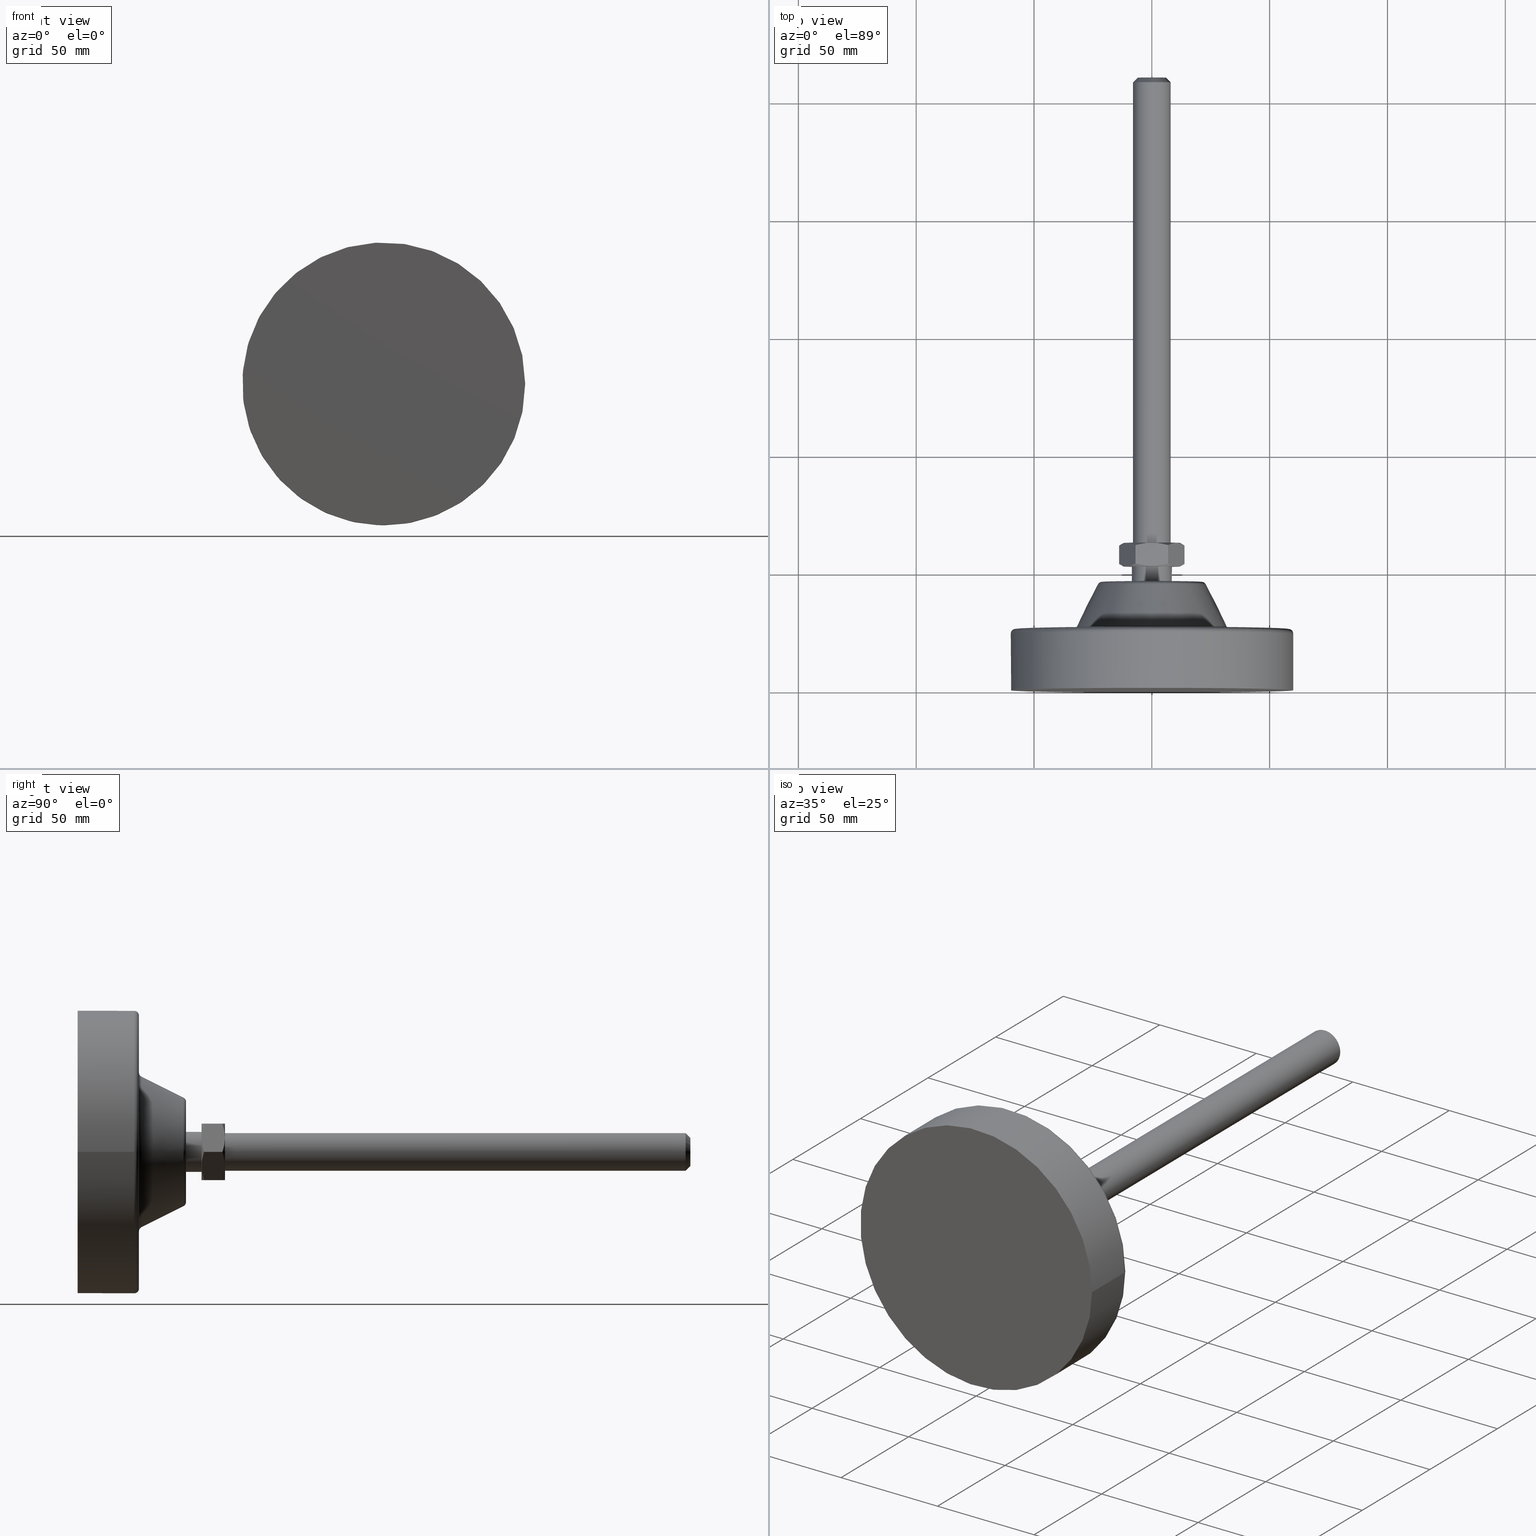
[diagram: canonical four-view strip — front | top / right | iso, engineering-drawing reading convention]
A machine part, canonical four-view strip (front | top / right | iso — engineering-drawing reading convention). The complete STEP part file that produces these views, byte-faithful:
ISO-10303-21;
HEADER;
/* Generated by software containing ST-Developer
 * from STEP Tools, Inc. (www.steptools.com) 
 */

FILE_DESCRIPTION(
/* description */ ('PIEDE SNODATO ANTIV. D=120 H=260 M16'),
/* implementation_level */ '2;1');

FILE_NAME(
/* name */ 
'Q:\\Catalogo\\2_Accessori Dierre\\Per Download Web e catalogo cartace
o\\CATALOGO PIEDI E SOSTEGNI\\PAGINA 50\\CPDSN0000017.stp',
/* time_stamp */ '2019-06-19T11:13:55+02:00',
/* author */ ('fzagni'),
/* organization */ (''),
/* preprocessor_version */ 'ST-DEVELOPER v17.2',
/* originating_system */ 'Autodesk Inventor 2019',
/* authorisation */ '');

FILE_SCHEMA (('AUTOMOTIVE_DESIGN { 1 0 10303 214 3 1 1 }'));
ENDSEC;

DATA;
#10=MECHANICAL_DESIGN_GEOMETRIC_PRESENTATION_REPRESENTATION('',(#40,#41),
#855);
#11=ITEM_DEFINED_TRANSFORMATION($,$,#470,#522);
#12=ITEM_DEFINED_TRANSFORMATION($,$,#496,#523);
#13=(
REPRESENTATION_RELATIONSHIP($,$,#869,#868)
REPRESENTATION_RELATIONSHIP_WITH_TRANSFORMATION(#11)
SHAPE_REPRESENTATION_RELATIONSHIP()
);
#14=(
REPRESENTATION_RELATIONSHIP($,$,#870,#868)
REPRESENTATION_RELATIONSHIP_WITH_TRANSFORMATION(#12)
SHAPE_REPRESENTATION_RELATIONSHIP()
);
#15=CONTEXT_DEPENDENT_SHAPE_REPRESENTATION(#13,#866);
#16=CONTEXT_DEPENDENT_SHAPE_REPRESENTATION(#14,#867);
#17=NEXT_ASSEMBLY_USAGE_OCCURRENCE('440000013166.ipt:1',
'440000013166.ipt:1','440000013166.ipt:1',#872,#873,
'440000013166.ipt:1');
#18=NEXT_ASSEMBLY_USAGE_OCCURRENCE('440000013167.ipt:2',
'440000013167.ipt:2','440000013167.ipt:2',#872,#874,
'440000013167.ipt:2');
#19=SPHERICAL_SURFACE('',#512,12.);
#20=(
BOUNDED_CURVE()
B_SPLINE_CURVE(2,(#752,#753,#754),.UNSPECIFIED.,.F.,.F.)
B_SPLINE_CURVE_WITH_KNOTS((3,3),(17.5321216666416,26.6588637905805),
 .UNSPECIFIED.)
CURVE()
GEOMETRIC_REPRESENTATION_ITEM()
RATIONAL_B_SPLINE_CURVE((1.36042725157686,1.36042725157686,1.26275296946847))
REPRESENTATION_ITEM('')
);
#21=(
BOUNDED_CURVE()
B_SPLINE_CURVE(2,(#756,#757,#758),.UNSPECIFIED.,.F.,.F.)
B_SPLINE_CURVE_WITH_KNOTS((3,3),(8.40537954270263,26.6588637905805),
 .UNSPECIFIED.)
CURVE()
GEOMETRIC_REPRESENTATION_ITEM()
RATIONAL_B_SPLINE_CURVE((1.26275296946847,1.45810153368524,1.26275296946847))
REPRESENTATION_ITEM('')
);
#22=(
BOUNDED_CURVE()
B_SPLINE_CURVE(2,(#760,#761,#762),.UNSPECIFIED.,.F.,.F.)
B_SPLINE_CURVE_WITH_KNOTS((3,3),(8.40537954270264,26.6588637905805),
 .UNSPECIFIED.)
CURVE()
GEOMETRIC_REPRESENTATION_ITEM()
RATIONAL_B_SPLINE_CURVE((1.26275296946847,1.45810153368524,1.26275296946847))
REPRESENTATION_ITEM('')
);
#23=(
BOUNDED_CURVE()
B_SPLINE_CURVE(2,(#764,#765,#766),.UNSPECIFIED.,.F.,.F.)
B_SPLINE_CURVE_WITH_KNOTS((3,3),(8.40537954270263,17.5321216666416),
 .UNSPECIFIED.)
CURVE()
GEOMETRIC_REPRESENTATION_ITEM()
RATIONAL_B_SPLINE_CURVE((1.26275296946847,1.36042725157686,1.36042725157686))
REPRESENTATION_ITEM('')
);
#24=(
BOUNDED_CURVE()
B_SPLINE_CURVE(2,(#768,#769,#770),.UNSPECIFIED.,.F.,.F.)
B_SPLINE_CURVE_WITH_KNOTS((3,3),(17.5321216666416,26.6588637905805),
 .UNSPECIFIED.)
CURVE()
GEOMETRIC_REPRESENTATION_ITEM()
RATIONAL_B_SPLINE_CURVE((1.36042725157686,1.36042725157686,1.26275296946847))
REPRESENTATION_ITEM('')
);
#25=(
BOUNDED_CURVE()
B_SPLINE_CURVE(2,(#772,#773,#774),.UNSPECIFIED.,.F.,.F.)
B_SPLINE_CURVE_WITH_KNOTS((3,3),(8.40537954270263,26.6588637905805),
 .UNSPECIFIED.)
CURVE()
GEOMETRIC_REPRESENTATION_ITEM()
RATIONAL_B_SPLINE_CURVE((1.26275296946847,1.45810153368524,1.26275296946847))
REPRESENTATION_ITEM('')
);
#26=(
BOUNDED_CURVE()
B_SPLINE_CURVE(2,(#776,#777,#778),.UNSPECIFIED.,.F.,.F.)
B_SPLINE_CURVE_WITH_KNOTS((3,3),(8.40537954270264,26.6588637905805),
 .UNSPECIFIED.)
CURVE()
GEOMETRIC_REPRESENTATION_ITEM()
RATIONAL_B_SPLINE_CURVE((1.26275296946847,1.45810153368524,1.26275296946847))
REPRESENTATION_ITEM('')
);
#27=(
BOUNDED_CURVE()
B_SPLINE_CURVE(2,(#779,#780,#781),.UNSPECIFIED.,.F.,.F.)
B_SPLINE_CURVE_WITH_KNOTS((3,3),(8.40537954270263,17.5321216666416),
 .UNSPECIFIED.)
CURVE()
GEOMETRIC_REPRESENTATION_ITEM()
RATIONAL_B_SPLINE_CURVE((1.26275296946847,1.36042725157686,1.36042725157686))
REPRESENTATION_ITEM('')
);
#28=(
BOUNDED_CURVE()
B_SPLINE_CURVE(2,(#788,#789,#790),.UNSPECIFIED.,.F.,.F.)
B_SPLINE_CURVE_WITH_KNOTS((3,3),(17.5321216666416,26.6588637905805),
 .UNSPECIFIED.)
CURVE()
GEOMETRIC_REPRESENTATION_ITEM()
RATIONAL_B_SPLINE_CURVE((1.36042725157685,1.36042725157685,1.26275296946846))
REPRESENTATION_ITEM('')
);
#29=(
BOUNDED_CURVE()
B_SPLINE_CURVE(2,(#792,#793,#794),.UNSPECIFIED.,.F.,.F.)
B_SPLINE_CURVE_WITH_KNOTS((3,3),(8.40537954270263,26.6588637905805),
 .UNSPECIFIED.)
CURVE()
GEOMETRIC_REPRESENTATION_ITEM()
RATIONAL_B_SPLINE_CURVE((1.26275296946847,1.45810153368524,1.26275296946847))
REPRESENTATION_ITEM('')
);
#30=(
BOUNDED_CURVE()
B_SPLINE_CURVE(2,(#796,#797,#798),.UNSPECIFIED.,.F.,.F.)
B_SPLINE_CURVE_WITH_KNOTS((3,3),(8.40537954270263,26.6588637905805),
 .UNSPECIFIED.)
CURVE()
GEOMETRIC_REPRESENTATION_ITEM()
RATIONAL_B_SPLINE_CURVE((1.26275296946847,1.45810153368524,1.26275296946846))
REPRESENTATION_ITEM('')
);
#31=(
BOUNDED_CURVE()
B_SPLINE_CURVE(2,(#800,#801,#802),.UNSPECIFIED.,.F.,.F.)
B_SPLINE_CURVE_WITH_KNOTS((3,3),(8.40537954270264,17.5321216666416),
 .UNSPECIFIED.)
CURVE()
GEOMETRIC_REPRESENTATION_ITEM()
RATIONAL_B_SPLINE_CURVE((1.26275296946846,1.36042725157685,1.36042725157685))
REPRESENTATION_ITEM('')
);
#32=(
BOUNDED_CURVE()
B_SPLINE_CURVE(2,(#804,#805,#806),.UNSPECIFIED.,.F.,.F.)
B_SPLINE_CURVE_WITH_KNOTS((3,3),(17.5321216666416,26.6588637905805),
 .UNSPECIFIED.)
CURVE()
GEOMETRIC_REPRESENTATION_ITEM()
RATIONAL_B_SPLINE_CURVE((1.36042725157685,1.36042725157685,1.26275296946846))
REPRESENTATION_ITEM('')
);
#33=(
BOUNDED_CURVE()
B_SPLINE_CURVE(2,(#808,#809,#810),.UNSPECIFIED.,.F.,.F.)
B_SPLINE_CURVE_WITH_KNOTS((3,3),(8.40537954270263,26.6588637905805),
 .UNSPECIFIED.)
CURVE()
GEOMETRIC_REPRESENTATION_ITEM()
RATIONAL_B_SPLINE_CURVE((1.26275296946847,1.45810153368524,1.26275296946847))
REPRESENTATION_ITEM('')
);
#34=(
BOUNDED_CURVE()
B_SPLINE_CURVE(2,(#812,#813,#814),.UNSPECIFIED.,.F.,.F.)
B_SPLINE_CURVE_WITH_KNOTS((3,3),(8.40537954270263,26.6588637905805),
 .UNSPECIFIED.)
CURVE()
GEOMETRIC_REPRESENTATION_ITEM()
RATIONAL_B_SPLINE_CURVE((1.26275296946847,1.45810153368524,1.26275296946846))
REPRESENTATION_ITEM('')
);
#35=(
BOUNDED_CURVE()
B_SPLINE_CURVE(2,(#815,#816,#817),.UNSPECIFIED.,.F.,.F.)
B_SPLINE_CURVE_WITH_KNOTS((3,3),(8.40537954270264,17.5321216666416),
 .UNSPECIFIED.)
CURVE()
GEOMETRIC_REPRESENTATION_ITEM()
RATIONAL_B_SPLINE_CURVE((1.26275296946846,1.36042725157685,1.36042725157685))
REPRESENTATION_ITEM('')
);
#36=SHAPE_REPRESENTATION_RELATIONSHIP('SRR','None',#869,#38);
#37=SHAPE_REPRESENTATION_RELATIONSHIP('SRR','None',#870,#39);
#38=ADVANCED_BREP_SHAPE_REPRESENTATION('',(#42),#853);
#39=ADVANCED_BREP_SHAPE_REPRESENTATION('',(#43),#854);
#40=STYLED_ITEM('',(#433),#42);
#41=STYLED_ITEM('',(#434),#43);
#42=MANIFOLD_SOLID_BREP('1',#408);
#43=MANIFOLD_SOLID_BREP('2',#409);
#44=(
BOUNDED_SURFACE()
B_SPLINE_SURFACE(2,2,((#687,#688,#689,#690,#691,#692,#693,#694,#695),(#696,
#697,#698,#699,#700,#701,#702,#703,#704),(#705,#706,#707,#708,#709,#710,
#711,#712,#713),(#714,#715,#716,#717,#718,#719,#720,#721,#722),(#723,#724,
#725,#726,#727,#728,#729,#730,#731)),.UNSPECIFIED.,.F.,.T.,.F.)
B_SPLINE_SURFACE_WITH_KNOTS((3,2,3),(3,2,2,2,3),(-0.698393292389818,0.407414147662031,
1.51322158771388),(-3.14159265358979,-1.5707963267949,0.,1.5707963267949,
3.14159265358979),.UNSPECIFIED.)
GEOMETRIC_REPRESENTATION_ITEM()
RATIONAL_B_SPLINE_SURFACE(((1.,0.707106781186548,1.,0.707106781186548,1.,
0.707106781186548,1.,0.707106781186548,1.),(0.8510031927523,0.601750128406554,
0.8510031927523,0.601750128406554,0.8510031927523,0.601750128406554,0.8510031927523,
0.601750128406554,0.8510031927523),(1.,0.707106781186548,1.,0.707106781186548,
1.,0.707106781186548,1.,0.707106781186548,1.),(0.851003192752299,0.601750128406553,
0.851003192752299,0.601750128406553,0.851003192752299,0.601750128406553,
0.851003192752299,0.601750128406553,0.851003192752299),(1.,0.707106781186548,
1.,0.707106781186548,1.,0.707106781186548,1.,0.707106781186548,1.)))
REPRESENTATION_ITEM('')
SURFACE()
);
#45=CYLINDRICAL_SURFACE('',#492,60.);
#46=CYLINDRICAL_SURFACE('',#502,8.);
#47=CYLINDRICAL_SURFACE('',#508,8.5);
#48=FACE_BOUND('',#121,.T.);
#49=FACE_BOUND('',#124,.T.);
#50=FACE_BOUND('',#143,.T.);
#51=FACE_BOUND('',#145,.T.);
#52=PLANE('',#479);
#53=PLANE('',#486);
#54=PLANE('',#495);
#55=PLANE('',#501);
#56=PLANE('',#514);
#57=PLANE('',#515);
#58=PLANE('',#516);
#59=PLANE('',#517);
#60=PLANE('',#518);
#61=PLANE('',#519);
#62=PLANE('',#520);
#63=PLANE('',#521);
#64=LINE('',#662,#77);
#65=LINE('',#685,#78);
#66=LINE('',#742,#79);
#67=LINE('',#748,#80);
#68=LINE('',#783,#81);
#69=LINE('',#819,#82);
#70=LINE('',#827,#83);
#71=LINE('',#833,#84);
#72=LINE('',#834,#85);
#73=LINE('',#836,#86);
#74=LINE('',#838,#87);
#75=LINE('',#840,#88);
#76=LINE('',#842,#89);
#77=VECTOR('',#544,27.5);
#78=VECTOR('',#573,60.);
#79=VECTOR('',#588,7.);
#80=VECTOR('',#597,8.);
#81=VECTOR('',#600,16.3201270189222);
#82=VECTOR('',#605,16.3201270189222);
#83=VECTOR('',#614,8.5);
#84=VECTOR('',#623,7.8448594551672);
#85=VECTOR('',#624,7.8448594551672);
#86=VECTOR('',#627,7.8448594551672);
#87=VECTOR('',#630,7.8448594551672);
#88=VECTOR('',#633,7.8448594551672);
#89=VECTOR('',#636,7.8448594551672);
#90=CONICAL_SURFACE('',#476,27.5,0.463647609000806);
#91=CONICAL_SURFACE('',#497,7.,0.78539816339745);
#92=CONICAL_SURFACE('',#504,16.3201270189222,1.0471975511966);
#93=CONICAL_SURFACE('',#506,16.3201270189222,1.0471975511966);
#94=FACE_OUTER_BOUND('',#118,.T.);
#95=FACE_OUTER_BOUND('',#119,.T.);
#96=FACE_OUTER_BOUND('',#120,.T.);
#97=FACE_OUTER_BOUND('',#122,.T.);
#98=FACE_OUTER_BOUND('',#123,.T.);
#99=FACE_OUTER_BOUND('',#125,.T.);
#100=FACE_OUTER_BOUND('',#126,.T.);
#101=FACE_OUTER_BOUND('',#127,.T.);
#102=FACE_OUTER_BOUND('',#128,.T.);
#103=FACE_OUTER_BOUND('',#129,.T.);
#104=FACE_OUTER_BOUND('',#130,.T.);
#105=FACE_OUTER_BOUND('',#131,.T.);
#106=FACE_OUTER_BOUND('',#132,.T.);
#107=FACE_OUTER_BOUND('',#133,.T.);
#108=FACE_OUTER_BOUND('',#134,.T.);
#109=FACE_OUTER_BOUND('',#135,.T.);
#110=FACE_OUTER_BOUND('',#136,.T.);
#111=FACE_OUTER_BOUND('',#137,.T.);
#112=FACE_OUTER_BOUND('',#138,.T.);
#113=FACE_OUTER_BOUND('',#139,.T.);
#114=FACE_OUTER_BOUND('',#140,.T.);
#115=FACE_OUTER_BOUND('',#141,.T.);
#116=FACE_OUTER_BOUND('',#142,.T.);
#117=FACE_OUTER_BOUND('',#144,.T.);
#118=EDGE_LOOP('',(#269,#270,#271,#272,#273));
#119=EDGE_LOOP('',(#274,#275,#276,#277,#278,#279));
#120=EDGE_LOOP('',(#280,#281));
#121=EDGE_LOOP('',(#282));
#122=EDGE_LOOP('',(#283,#284,#285,#286,#287,#288));
#123=EDGE_LOOP('',(#289,#290));
#124=EDGE_LOOP('',(#291));
#125=EDGE_LOOP('',(#292,#293,#294,#295,#296,#297));
#126=EDGE_LOOP('',(#298,#299,#300,#301,#302));
#127=EDGE_LOOP('',(#303,#304,#305));
#128=EDGE_LOOP('',(#306));
#129=EDGE_LOOP('',(#307,#308,#309,#310,#311));
#130=EDGE_LOOP('',(#312));
#131=EDGE_LOOP('',(#313,#314,#315,#316,#317));
#132=EDGE_LOOP('',(#318,#319,#320,#321,#322,#323,#324,#325,#326,#327,#328));
#133=EDGE_LOOP('',(#329,#330,#331,#332,#333,#334,#335,#336,#337,#338,#339));
#134=EDGE_LOOP('',(#340,#341,#342,#343,#344));
#135=EDGE_LOOP('',(#345,#346,#347,#348));
#136=EDGE_LOOP('',(#349,#350,#351,#352));
#137=EDGE_LOOP('',(#353,#354,#355,#356,#357,#358));
#138=EDGE_LOOP('',(#359,#360,#361,#362));
#139=EDGE_LOOP('',(#363,#364,#365,#366));
#140=EDGE_LOOP('',(#367,#368,#369,#370,#371,#372));
#141=EDGE_LOOP('',(#373,#374,#375,#376));
#142=EDGE_LOOP('',(#377));
#143=EDGE_LOOP('',(#378));
#144=EDGE_LOOP('',(#379));
#145=EDGE_LOOP('',(#380));
#146=CIRCLE('',#472,31.9472135955);
#147=CIRCLE('',#473,31.9472135955);
#148=CIRCLE('',#474,2.);
#149=CIRCLE('',#475,33.7360679774998);
#150=CIRCLE('',#477,23.0527864045);
#151=CIRCLE('',#478,23.0527864045);
#152=CIRCLE('',#480,58.);
#153=CIRCLE('',#481,58.);
#154=CIRCLE('',#483,21.2639320225002);
#155=CIRCLE('',#484,2.);
#156=CIRCLE('',#485,21.2639320225002);
#157=CIRCLE('',#487,8.5);
#158=CIRCLE('',#489,2.);
#159=CIRCLE('',#490,60.);
#160=CIRCLE('',#491,60.);
#161=CIRCLE('',#493,60.);
#162=CIRCLE('',#494,12.);
#163=CIRCLE('',#498,8.);
#164=CIRCLE('',#499,8.);
#165=CIRCLE('',#500,6.);
#166=CIRCLE('',#503,8.);
#167=CIRCLE('',#505,11.99);
#168=CIRCLE('',#507,11.99);
#169=CIRCLE('',#509,8.5);
#170=CIRCLE('',#510,8.5);
#171=CIRCLE('',#511,8.5);
#172=CIRCLE('',#513,12.);
#173=VERTEX_POINT('',#650);
#174=VERTEX_POINT('',#651);
#175=VERTEX_POINT('',#654);
#176=VERTEX_POINT('',#658);
#177=VERTEX_POINT('',#659);
#178=VERTEX_POINT('',#664);
#179=VERTEX_POINT('',#665);
#180=VERTEX_POINT('',#669);
#181=VERTEX_POINT('',#670);
#182=VERTEX_POINT('',#675);
#183=VERTEX_POINT('',#678);
#184=VERTEX_POINT('',#680);
#185=VERTEX_POINT('',#684);
#186=VERTEX_POINT('',#732);
#187=VERTEX_POINT('',#737);
#188=VERTEX_POINT('',#738);
#189=VERTEX_POINT('',#741);
#190=VERTEX_POINT('',#746);
#191=VERTEX_POINT('',#750);
#192=VERTEX_POINT('',#751);
#193=VERTEX_POINT('',#755);
#194=VERTEX_POINT('',#759);
#195=VERTEX_POINT('',#763);
#196=VERTEX_POINT('',#767);
#197=VERTEX_POINT('',#771);
#198=VERTEX_POINT('',#775);
#199=VERTEX_POINT('',#782);
#200=VERTEX_POINT('',#786);
#201=VERTEX_POINT('',#787);
#202=VERTEX_POINT('',#791);
#203=VERTEX_POINT('',#795);
#204=VERTEX_POINT('',#799);
#205=VERTEX_POINT('',#803);
#206=VERTEX_POINT('',#807);
#207=VERTEX_POINT('',#811);
#208=VERTEX_POINT('',#818);
#209=VERTEX_POINT('',#822);
#210=VERTEX_POINT('',#823);
#211=VERTEX_POINT('',#826);
#212=VERTEX_POINT('',#830);
#213=EDGE_CURVE('',#173,#174,#146,.T.);
#214=EDGE_CURVE('',#174,#173,#147,.T.);
#215=EDGE_CURVE('',#173,#175,#148,.T.);
#216=EDGE_CURVE('',#175,#175,#149,.T.);
#217=EDGE_CURVE('',#176,#177,#150,.T.);
#218=EDGE_CURVE('',#177,#176,#151,.T.);
#219=EDGE_CURVE('',#177,#174,#64,.T.);
#220=EDGE_CURVE('',#178,#179,#152,.T.);
#221=EDGE_CURVE('',#179,#178,#153,.T.);
#222=EDGE_CURVE('',#180,#181,#154,.T.);
#223=EDGE_CURVE('',#181,#177,#155,.T.);
#224=EDGE_CURVE('',#181,#180,#156,.T.);
#225=EDGE_CURVE('',#182,#182,#157,.T.);
#226=EDGE_CURVE('',#179,#183,#158,.T.);
#227=EDGE_CURVE('',#183,#184,#159,.T.);
#228=EDGE_CURVE('',#184,#183,#160,.T.);
#229=EDGE_CURVE('',#184,#185,#65,.T.);
#230=EDGE_CURVE('',#185,#185,#161,.T.);
#231=EDGE_CURVE('',#182,#186,#162,.T.);
#232=EDGE_CURVE('',#187,#188,#163,.T.);
#233=EDGE_CURVE('',#188,#187,#164,.T.);
#234=EDGE_CURVE('',#187,#189,#66,.T.);
#235=EDGE_CURVE('',#189,#189,#165,.T.);
#236=EDGE_CURVE('',#190,#190,#166,.T.);
#237=EDGE_CURVE('',#190,#188,#67,.T.);
#238=EDGE_CURVE('',#191,#192,#20,.T.);
#239=EDGE_CURVE('',#192,#193,#21,.T.);
#240=EDGE_CURVE('',#193,#194,#22,.T.);
#241=EDGE_CURVE('',#194,#195,#23,.T.);
#242=EDGE_CURVE('',#195,#196,#24,.T.);
#243=EDGE_CURVE('',#196,#197,#25,.T.);
#244=EDGE_CURVE('',#197,#198,#26,.T.);
#245=EDGE_CURVE('',#198,#191,#27,.T.);
#246=EDGE_CURVE('',#191,#199,#68,.T.);
#247=EDGE_CURVE('',#199,#199,#167,.T.);
#248=EDGE_CURVE('',#200,#201,#28,.T.);
#249=EDGE_CURVE('',#201,#202,#29,.T.);
#250=EDGE_CURVE('',#202,#203,#30,.T.);
#251=EDGE_CURVE('',#203,#204,#31,.T.);
#252=EDGE_CURVE('',#204,#205,#32,.T.);
#253=EDGE_CURVE('',#205,#206,#33,.T.);
#254=EDGE_CURVE('',#206,#207,#34,.T.);
#255=EDGE_CURVE('',#207,#200,#35,.T.);
#256=EDGE_CURVE('',#200,#208,#69,.T.);
#257=EDGE_CURVE('',#208,#208,#168,.T.);
#258=EDGE_CURVE('',#209,#210,#169,.T.);
#259=EDGE_CURVE('',#210,#209,#170,.T.);
#260=EDGE_CURVE('',#209,#211,#70,.T.);
#261=EDGE_CURVE('',#211,#211,#171,.T.);
#262=EDGE_CURVE('',#210,#212,#172,.T.);
#263=EDGE_CURVE('',#193,#206,#71,.T.);
#264=EDGE_CURVE('',#192,#207,#72,.T.);
#265=EDGE_CURVE('',#198,#201,#73,.T.);
#266=EDGE_CURVE('',#197,#202,#74,.T.);
#267=EDGE_CURVE('',#196,#203,#75,.T.);
#268=EDGE_CURVE('',#194,#205,#76,.T.);
#269=ORIENTED_EDGE('',*,*,#213,.T.);
#270=ORIENTED_EDGE('',*,*,#214,.T.);
#271=ORIENTED_EDGE('',*,*,#215,.T.);
#272=ORIENTED_EDGE('',*,*,#216,.T.);
#273=ORIENTED_EDGE('',*,*,#215,.F.);
#274=ORIENTED_EDGE('',*,*,#217,.F.);
#275=ORIENTED_EDGE('',*,*,#218,.F.);
#276=ORIENTED_EDGE('',*,*,#219,.T.);
#277=ORIENTED_EDGE('',*,*,#213,.F.);
#278=ORIENTED_EDGE('',*,*,#214,.F.);
#279=ORIENTED_EDGE('',*,*,#219,.F.);
#280=ORIENTED_EDGE('',*,*,#220,.F.);
#281=ORIENTED_EDGE('',*,*,#221,.F.);
#282=ORIENTED_EDGE('',*,*,#216,.F.);
#283=ORIENTED_EDGE('',*,*,#222,.T.);
#284=ORIENTED_EDGE('',*,*,#223,.T.);
#285=ORIENTED_EDGE('',*,*,#218,.T.);
#286=ORIENTED_EDGE('',*,*,#217,.T.);
#287=ORIENTED_EDGE('',*,*,#223,.F.);
#288=ORIENTED_EDGE('',*,*,#224,.T.);
#289=ORIENTED_EDGE('',*,*,#222,.F.);
#290=ORIENTED_EDGE('',*,*,#224,.F.);
#291=ORIENTED_EDGE('',*,*,#225,.T.);
#292=ORIENTED_EDGE('',*,*,#220,.T.);
#293=ORIENTED_EDGE('',*,*,#226,.T.);
#294=ORIENTED_EDGE('',*,*,#227,.T.);
#295=ORIENTED_EDGE('',*,*,#228,.T.);
#296=ORIENTED_EDGE('',*,*,#226,.F.);
#297=ORIENTED_EDGE('',*,*,#221,.T.);
#298=ORIENTED_EDGE('',*,*,#228,.F.);
#299=ORIENTED_EDGE('',*,*,#229,.T.);
#300=ORIENTED_EDGE('',*,*,#230,.T.);
#301=ORIENTED_EDGE('',*,*,#229,.F.);
#302=ORIENTED_EDGE('',*,*,#227,.F.);
#303=ORIENTED_EDGE('',*,*,#225,.F.);
#304=ORIENTED_EDGE('',*,*,#231,.T.);
#305=ORIENTED_EDGE('',*,*,#231,.F.);
#306=ORIENTED_EDGE('',*,*,#230,.F.);
#307=ORIENTED_EDGE('',*,*,#232,.T.);
#308=ORIENTED_EDGE('',*,*,#233,.T.);
#309=ORIENTED_EDGE('',*,*,#234,.T.);
#310=ORIENTED_EDGE('',*,*,#235,.T.);
#311=ORIENTED_EDGE('',*,*,#234,.F.);
#312=ORIENTED_EDGE('',*,*,#235,.F.);
#313=ORIENTED_EDGE('',*,*,#236,.T.);
#314=ORIENTED_EDGE('',*,*,#237,.T.);
#315=ORIENTED_EDGE('',*,*,#232,.F.);
#316=ORIENTED_EDGE('',*,*,#233,.F.);
#317=ORIENTED_EDGE('',*,*,#237,.F.);
#318=ORIENTED_EDGE('',*,*,#238,.T.);
#319=ORIENTED_EDGE('',*,*,#239,.T.);
#320=ORIENTED_EDGE('',*,*,#240,.T.);
#321=ORIENTED_EDGE('',*,*,#241,.T.);
#322=ORIENTED_EDGE('',*,*,#242,.T.);
#323=ORIENTED_EDGE('',*,*,#243,.T.);
#324=ORIENTED_EDGE('',*,*,#244,.T.);
#325=ORIENTED_EDGE('',*,*,#245,.T.);
#326=ORIENTED_EDGE('',*,*,#246,.T.);
#327=ORIENTED_EDGE('',*,*,#247,.F.);
#328=ORIENTED_EDGE('',*,*,#246,.F.);
#329=ORIENTED_EDGE('',*,*,#248,.T.);
#330=ORIENTED_EDGE('',*,*,#249,.T.);
#331=ORIENTED_EDGE('',*,*,#250,.T.);
#332=ORIENTED_EDGE('',*,*,#251,.T.);
#333=ORIENTED_EDGE('',*,*,#252,.T.);
#334=ORIENTED_EDGE('',*,*,#253,.T.);
#335=ORIENTED_EDGE('',*,*,#254,.T.);
#336=ORIENTED_EDGE('',*,*,#255,.T.);
#337=ORIENTED_EDGE('',*,*,#256,.T.);
#338=ORIENTED_EDGE('',*,*,#257,.T.);
#339=ORIENTED_EDGE('',*,*,#256,.F.);
#340=ORIENTED_EDGE('',*,*,#258,.T.);
#341=ORIENTED_EDGE('',*,*,#259,.T.);
#342=ORIENTED_EDGE('',*,*,#260,.T.);
#343=ORIENTED_EDGE('',*,*,#261,.F.);
#344=ORIENTED_EDGE('',*,*,#260,.F.);
#345=ORIENTED_EDGE('',*,*,#258,.F.);
#346=ORIENTED_EDGE('',*,*,#259,.F.);
#347=ORIENTED_EDGE('',*,*,#262,.T.);
#348=ORIENTED_EDGE('',*,*,#262,.F.);
#349=ORIENTED_EDGE('',*,*,#254,.F.);
#350=ORIENTED_EDGE('',*,*,#263,.F.);
#351=ORIENTED_EDGE('',*,*,#239,.F.);
#352=ORIENTED_EDGE('',*,*,#264,.T.);
#353=ORIENTED_EDGE('',*,*,#255,.F.);
#354=ORIENTED_EDGE('',*,*,#264,.F.);
#355=ORIENTED_EDGE('',*,*,#238,.F.);
#356=ORIENTED_EDGE('',*,*,#245,.F.);
#357=ORIENTED_EDGE('',*,*,#265,.T.);
#358=ORIENTED_EDGE('',*,*,#248,.F.);
#359=ORIENTED_EDGE('',*,*,#249,.F.);
#360=ORIENTED_EDGE('',*,*,#265,.F.);
#361=ORIENTED_EDGE('',*,*,#244,.F.);
#362=ORIENTED_EDGE('',*,*,#266,.T.);
#363=ORIENTED_EDGE('',*,*,#250,.F.);
#364=ORIENTED_EDGE('',*,*,#266,.F.);
#365=ORIENTED_EDGE('',*,*,#243,.F.);
#366=ORIENTED_EDGE('',*,*,#267,.T.);
#367=ORIENTED_EDGE('',*,*,#251,.F.);
#368=ORIENTED_EDGE('',*,*,#267,.F.);
#369=ORIENTED_EDGE('',*,*,#242,.F.);
#370=ORIENTED_EDGE('',*,*,#241,.F.);
#371=ORIENTED_EDGE('',*,*,#268,.T.);
#372=ORIENTED_EDGE('',*,*,#252,.F.);
#373=ORIENTED_EDGE('',*,*,#253,.F.);
#374=ORIENTED_EDGE('',*,*,#268,.F.);
#375=ORIENTED_EDGE('',*,*,#240,.F.);
#376=ORIENTED_EDGE('',*,*,#263,.T.);
#377=ORIENTED_EDGE('',*,*,#257,.F.);
#378=ORIENTED_EDGE('',*,*,#261,.T.);
#379=ORIENTED_EDGE('',*,*,#247,.T.);
#380=ORIENTED_EDGE('',*,*,#236,.F.);
#381=TOROIDAL_SURFACE('',#471,33.7360679774998,2.);
#382=TOROIDAL_SURFACE('',#482,21.2639320225002,2.);
#383=TOROIDAL_SURFACE('',#488,58.,2.);
#384=ADVANCED_FACE('',(#94),#381,.F.);
#385=ADVANCED_FACE('',(#95),#90,.T.);
#386=ADVANCED_FACE('',(#96,#48),#52,.T.);
#387=ADVANCED_FACE('',(#97),#382,.T.);
#388=ADVANCED_FACE('',(#98,#49),#53,.T.);
#389=ADVANCED_FACE('',(#99),#383,.T.);
#390=ADVANCED_FACE('',(#100),#45,.T.);
#391=ADVANCED_FACE('',(#101),#44,.T.);
#392=ADVANCED_FACE('',(#102),#54,.T.);
#393=ADVANCED_FACE('',(#103),#91,.T.);
#394=ADVANCED_FACE('',(#104),#55,.T.);
#395=ADVANCED_FACE('',(#105),#46,.T.);
#396=ADVANCED_FACE('',(#106),#92,.T.);
#397=ADVANCED_FACE('',(#107),#93,.T.);
#398=ADVANCED_FACE('',(#108),#47,.T.);
#399=ADVANCED_FACE('',(#109),#19,.T.);
#400=ADVANCED_FACE('',(#110),#56,.F.);
#401=ADVANCED_FACE('',(#111),#57,.F.);
#402=ADVANCED_FACE('',(#112),#58,.F.);
#403=ADVANCED_FACE('',(#113),#59,.F.);
#404=ADVANCED_FACE('',(#114),#60,.F.);
#405=ADVANCED_FACE('',(#115),#61,.F.);
#406=ADVANCED_FACE('',(#116,#50),#62,.T.);
#407=ADVANCED_FACE('',(#117,#51),#63,.T.);
#408=CLOSED_SHELL('',(#384,#385,#386,#387,#388,#389,#390,#391,#392));
#409=CLOSED_SHELL('',(#393,#394,#395,#396,#397,#398,#399,#400,#401,#402,
#403,#404,#405,#406,#407));
#410=DERIVED_UNIT_ELEMENT(#414,1.);
#411=DERIVED_UNIT_ELEMENT(#857,3.);
#412=DERIVED_UNIT_ELEMENT(#414,1.);
#413=DERIVED_UNIT_ELEMENT(#857,3.);
#414=(
MASS_UNIT()
NAMED_UNIT(*)
SI_UNIT($,.GRAM.)
);
#415=DERIVED_UNIT((#410,#411));
#416=DERIVED_UNIT((#412,#413));
#417=MEASURE_REPRESENTATION_ITEM('density measure',
POSITIVE_RATIO_MEASURE(1.06),#415);
#418=MEASURE_REPRESENTATION_ITEM('density measure',
POSITIVE_RATIO_MEASURE(7.85),#416);
#419=PROPERTY_DEFINITION_REPRESENTATION(#429,#423);
#420=PROPERTY_DEFINITION_REPRESENTATION(#430,#424);
#421=PROPERTY_DEFINITION_REPRESENTATION(#431,#425);
#422=PROPERTY_DEFINITION_REPRESENTATION(#432,#426);
#423=REPRESENTATION('material name',(#427),#853);
#424=REPRESENTATION('density',(#417),#853);
#425=REPRESENTATION('material name',(#428),#854);
#426=REPRESENTATION('density',(#418),#854);
#427=DESCRIPTIVE_REPRESENTATION_ITEM('Plastica ABS','Plastica ABS');
#428=DESCRIPTIVE_REPRESENTATION_ITEM('Acciaio S235JR','Acciaio S235JR');
#429=PROPERTY_DEFINITION('material property','material name',#873);
#430=PROPERTY_DEFINITION('material property','density of part',#873);
#431=PROPERTY_DEFINITION('material property','material name',#874);
#432=PROPERTY_DEFINITION('material property','density of part',#874);
#433=PRESENTATION_STYLE_ASSIGNMENT((#435));
#434=PRESENTATION_STYLE_ASSIGNMENT((#436));
#435=SURFACE_STYLE_USAGE(.BOTH.,#441);
#436=SURFACE_STYLE_USAGE(.BOTH.,#442);
#437=SURFACE_STYLE_RENDERING_WITH_PROPERTIES($,#449,(#439));
#438=SURFACE_STYLE_RENDERING_WITH_PROPERTIES($,#450,(#440));
#439=SURFACE_STYLE_TRANSPARENT(1.);
#440=SURFACE_STYLE_TRANSPARENT(1.);
#441=SURFACE_SIDE_STYLE('',(#443,#437));
#442=SURFACE_SIDE_STYLE('',(#444,#438));
#443=SURFACE_STYLE_FILL_AREA(#445);
#444=SURFACE_STYLE_FILL_AREA(#446);
#445=FILL_AREA_STYLE('',(#447));
#446=FILL_AREA_STYLE('',(#448));
#447=FILL_AREA_STYLE_COLOUR('',#449);
#448=FILL_AREA_STYLE_COLOUR('',#450);
#449=COLOUR_RGB('',0.16078431372549,0.16078431372549,0.16078431372549);
#450=COLOUR_RGB('',0.83921568627451,0.886274509803922,0.854901960784314);
#451=DATE_TIME_ROLE('creation_date');
#452=DATE_TIME_ROLE('creation_date');
#453=DATE_TIME_ROLE('creation_date');
#454=APPLIED_DATE_AND_TIME_ASSIGNMENT(#457,#451,(#872));
#455=APPLIED_DATE_AND_TIME_ASSIGNMENT(#458,#452,(#873));
#456=APPLIED_DATE_AND_TIME_ASSIGNMENT(#459,#453,(#874));
#457=DATE_AND_TIME(#460,#463);
#458=DATE_AND_TIME(#461,#464);
#459=DATE_AND_TIME(#462,#465);
#460=CALENDAR_DATE(2014,21,1);
#461=CALENDAR_DATE(2012,11,4);
#462=CALENDAR_DATE(2012,11,4);
#463=LOCAL_TIME(23,0,0.,#466);
#464=LOCAL_TIME(13,52,44.,#467);
#465=LOCAL_TIME(13,52,44.,#468);
#466=COORDINATED_UNIVERSAL_TIME_OFFSET(0,0,.BEHIND.);
#467=COORDINATED_UNIVERSAL_TIME_OFFSET(0,0,.BEHIND.);
#468=COORDINATED_UNIVERSAL_TIME_OFFSET(0,0,.BEHIND.);
#469=AXIS2_PLACEMENT_3D('placement',#647,#524,#525);
#470=AXIS2_PLACEMENT_3D('placement',#648,#526,#527);
#471=AXIS2_PLACEMENT_3D('',#649,#528,#529);
#472=AXIS2_PLACEMENT_3D('',#652,#530,#531);
#473=AXIS2_PLACEMENT_3D('',#653,#532,#533);
#474=AXIS2_PLACEMENT_3D('',#655,#534,#535);
#475=AXIS2_PLACEMENT_3D('',#656,#536,#537);
#476=AXIS2_PLACEMENT_3D('',#657,#538,#539);
#477=AXIS2_PLACEMENT_3D('',#660,#540,#541);
#478=AXIS2_PLACEMENT_3D('',#661,#542,#543);
#479=AXIS2_PLACEMENT_3D('',#663,#545,#546);
#480=AXIS2_PLACEMENT_3D('',#666,#547,#548);
#481=AXIS2_PLACEMENT_3D('',#667,#549,#550);
#482=AXIS2_PLACEMENT_3D('',#668,#551,#552);
#483=AXIS2_PLACEMENT_3D('',#671,#553,#554);
#484=AXIS2_PLACEMENT_3D('',#672,#555,#556);
#485=AXIS2_PLACEMENT_3D('',#673,#557,#558);
#486=AXIS2_PLACEMENT_3D('',#674,#559,#560);
#487=AXIS2_PLACEMENT_3D('',#676,#561,#562);
#488=AXIS2_PLACEMENT_3D('',#677,#563,#564);
#489=AXIS2_PLACEMENT_3D('',#679,#565,#566);
#490=AXIS2_PLACEMENT_3D('',#681,#567,#568);
#491=AXIS2_PLACEMENT_3D('',#682,#569,#570);
#492=AXIS2_PLACEMENT_3D('',#683,#571,#572);
#493=AXIS2_PLACEMENT_3D('',#686,#574,#575);
#494=AXIS2_PLACEMENT_3D('',#733,#576,#577);
#495=AXIS2_PLACEMENT_3D('',#734,#578,#579);
#496=AXIS2_PLACEMENT_3D('placement',#735,#580,#581);
#497=AXIS2_PLACEMENT_3D('',#736,#582,#583);
#498=AXIS2_PLACEMENT_3D('',#739,#584,#585);
#499=AXIS2_PLACEMENT_3D('',#740,#586,#587);
#500=AXIS2_PLACEMENT_3D('',#743,#589,#590);
#501=AXIS2_PLACEMENT_3D('',#744,#591,#592);
#502=AXIS2_PLACEMENT_3D('',#745,#593,#594);
#503=AXIS2_PLACEMENT_3D('',#747,#595,#596);
#504=AXIS2_PLACEMENT_3D('',#749,#598,#599);
#505=AXIS2_PLACEMENT_3D('',#784,#601,#602);
#506=AXIS2_PLACEMENT_3D('',#785,#603,#604);
#507=AXIS2_PLACEMENT_3D('',#820,#606,#607);
#508=AXIS2_PLACEMENT_3D('',#821,#608,#609);
#509=AXIS2_PLACEMENT_3D('',#824,#610,#611);
#510=AXIS2_PLACEMENT_3D('',#825,#612,#613);
#511=AXIS2_PLACEMENT_3D('',#828,#615,#616);
#512=AXIS2_PLACEMENT_3D('',#829,#617,#618);
#513=AXIS2_PLACEMENT_3D('',#831,#619,#620);
#514=AXIS2_PLACEMENT_3D('',#832,#621,#622);
#515=AXIS2_PLACEMENT_3D('',#835,#625,#626);
#516=AXIS2_PLACEMENT_3D('',#837,#628,#629);
#517=AXIS2_PLACEMENT_3D('',#839,#631,#632);
#518=AXIS2_PLACEMENT_3D('',#841,#634,#635);
#519=AXIS2_PLACEMENT_3D('',#843,#637,#638);
#520=AXIS2_PLACEMENT_3D('',#844,#639,#640);
#521=AXIS2_PLACEMENT_3D('',#845,#641,#642);
#522=AXIS2_PLACEMENT_3D('',#846,#643,#644);
#523=AXIS2_PLACEMENT_3D('',#847,#645,#646);
#524=DIRECTION('axis',(0.,0.,1.));
#525=DIRECTION('refdir',(1.,0.,0.));
#526=DIRECTION('axis',(0.,0.,1.));
#527=DIRECTION('refdir',(1.,0.,0.));
#528=DIRECTION('center_axis',(0.,-1.,0.));
#529=DIRECTION('ref_axis',(0.,0.,-1.));
#530=DIRECTION('center_axis',(0.,-1.,0.));
#531=DIRECTION('ref_axis',(-1.22464679914735E-16,0.,-1.));
#532=DIRECTION('center_axis',(0.,-1.,0.));
#533=DIRECTION('ref_axis',(-1.22464679914735E-16,0.,-1.));
#534=DIRECTION('center_axis',(-1.,0.,-1.22464679914735E-16));
#535=DIRECTION('ref_axis',(-1.22464679914735E-16,0.,1.));
#536=DIRECTION('center_axis',(0.,1.,0.));
#537=DIRECTION('ref_axis',(-1.22464679914735E-16,0.,-1.));
#538=DIRECTION('center_axis',(0.,-1.,0.));
#539=DIRECTION('ref_axis',(0.,0.,1.));
#540=DIRECTION('center_axis',(0.,1.,0.));
#541=DIRECTION('ref_axis',(-3.06161699786838E-17,0.,-1.));
#542=DIRECTION('center_axis',(0.,1.,0.));
#543=DIRECTION('ref_axis',(-3.06161699786838E-17,0.,-1.));
#544=DIRECTION('',(-5.47678698264203E-17,-0.894427190999916,-0.447213595499958));
#545=DIRECTION('center_axis',(0.,1.,0.));
#546=DIRECTION('ref_axis',(0.,0.,1.));
#547=DIRECTION('center_axis',(0.,-1.,0.));
#548=DIRECTION('ref_axis',(-1.,0.,0.));
#549=DIRECTION('center_axis',(0.,-1.,0.));
#550=DIRECTION('ref_axis',(-1.,0.,0.));
#551=DIRECTION('center_axis',(0.,1.,0.));
#552=DIRECTION('ref_axis',(0.,0.,1.));
#553=DIRECTION('center_axis',(0.,-1.,0.));
#554=DIRECTION('ref_axis',(6.12323399573677E-17,0.,-1.));
#555=DIRECTION('center_axis',(-1.,0.,1.22464679914735E-16));
#556=DIRECTION('ref_axis',(-1.22464679914735E-16,0.,-1.));
#557=DIRECTION('center_axis',(0.,-1.,0.));
#558=DIRECTION('ref_axis',(6.12323399573677E-17,0.,-1.));
#559=DIRECTION('center_axis',(0.,1.,0.));
#560=DIRECTION('ref_axis',(0.,0.,1.));
#561=DIRECTION('center_axis',(0.,-1.,0.));
#562=DIRECTION('ref_axis',(0.,0.,-1.));
#563=DIRECTION('center_axis',(0.,1.,0.));
#564=DIRECTION('ref_axis',(0.,0.,1.));
#565=DIRECTION('center_axis',(-1.,0.,1.22464679914735E-16));
#566=DIRECTION('ref_axis',(-1.22464679914735E-16,0.,-1.));
#567=DIRECTION('center_axis',(0.,1.,0.));
#568=DIRECTION('ref_axis',(-1.,0.,0.));
#569=DIRECTION('center_axis',(0.,1.,0.));
#570=DIRECTION('ref_axis',(-1.,0.,0.));
#571=DIRECTION('center_axis',(0.,1.,0.));
#572=DIRECTION('ref_axis',(-1.,0.,0.));
#573=DIRECTION('',(0.,-1.,0.));
#574=DIRECTION('center_axis',(0.,1.,0.));
#575=DIRECTION('ref_axis',(-1.,0.,0.));
#576=DIRECTION('center_axis',(1.,0.,1.22464679914735E-16));
#577=DIRECTION('ref_axis',(-1.22464679914735E-16,0.,1.));
#578=DIRECTION('center_axis',(0.,-1.,0.));
#579=DIRECTION('ref_axis',(0.,0.,-1.));
#580=DIRECTION('axis',(0.,0.,1.));
#581=DIRECTION('refdir',(1.,0.,0.));
#582=DIRECTION('center_axis',(0.,-1.,0.));
#583=DIRECTION('ref_axis',(-1.,0.,0.));
#584=DIRECTION('center_axis',(0.,1.,0.));
#585=DIRECTION('ref_axis',(-1.,0.,0.));
#586=DIRECTION('center_axis',(0.,1.,0.));
#587=DIRECTION('ref_axis',(-1.,0.,0.));
#588=DIRECTION('',(-0.707106781186549,0.707106781186546,-8.65956056235495E-17));
#589=DIRECTION('center_axis',(0.,-1.,0.));
#590=DIRECTION('ref_axis',(-1.,0.,0.));
#591=DIRECTION('center_axis',(0.,1.,0.));
#592=DIRECTION('ref_axis',(0.,0.,1.));
#593=DIRECTION('center_axis',(0.,-1.,0.));
#594=DIRECTION('ref_axis',(1.,0.,0.));
#595=DIRECTION('center_axis',(0.,1.,0.));
#596=DIRECTION('ref_axis',(1.,0.,0.));
#597=DIRECTION('',(0.,1.,0.));
#598=DIRECTION('center_axis',(0.,-1.,0.));
#599=DIRECTION('ref_axis',(1.,0.,0.));
#600=DIRECTION('',(0.86602540378444,0.499999999999998,1.06057523872491E-16));
#601=DIRECTION('center_axis',(0.,1.,0.));
#602=DIRECTION('ref_axis',(1.,0.,0.));
#603=DIRECTION('center_axis',(0.,1.,0.));
#604=DIRECTION('ref_axis',(1.,0.,0.));
#605=DIRECTION('',(0.86602540378444,-0.499999999999998,-1.06057523872491E-16));
#606=DIRECTION('center_axis',(0.,1.,0.));
#607=DIRECTION('ref_axis',(1.,0.,0.));
#608=DIRECTION('center_axis',(0.,-1.,0.));
#609=DIRECTION('ref_axis',(1.,0.,0.));
#610=DIRECTION('center_axis',(0.,1.,0.));
#611=DIRECTION('ref_axis',(1.,0.,0.));
#612=DIRECTION('center_axis',(0.,1.,0.));
#613=DIRECTION('ref_axis',(1.,0.,0.));
#614=DIRECTION('',(0.,1.,0.));
#615=DIRECTION('center_axis',(0.,1.,0.));
#616=DIRECTION('ref_axis',(1.,0.,0.));
#617=DIRECTION('center_axis',(0.,1.,-6.12323399573677E-17));
#618=DIRECTION('ref_axis',(0.,0.,-1.));
#619=DIRECTION('center_axis',(1.,0.,-1.22464679914735E-16));
#620=DIRECTION('ref_axis',(1.22464679914735E-16,0.,1.));
#621=DIRECTION('center_axis',(0.5,0.,-0.866025403784439));
#622=DIRECTION('ref_axis',(-0.866025403784439,0.,-0.5));
#623=DIRECTION('',(0.,-1.,0.));
#624=DIRECTION('',(0.,-1.,0.));
#625=DIRECTION('center_axis',(1.,0.,0.));
#626=DIRECTION('ref_axis',(0.,0.,-1.));
#627=DIRECTION('',(0.,-1.,0.));
#628=DIRECTION('center_axis',(0.5,0.,0.866025403784439));
#629=DIRECTION('ref_axis',(0.866025403784439,0.,-0.5));
#630=DIRECTION('',(0.,-1.,0.));
#631=DIRECTION('center_axis',(-0.5,0.,0.866025403784439));
#632=DIRECTION('ref_axis',(0.866025403784439,0.,0.5));
#633=DIRECTION('',(0.,-1.,0.));
#634=DIRECTION('center_axis',(-1.,0.,0.));
#635=DIRECTION('ref_axis',(0.,0.,1.));
#636=DIRECTION('',(0.,-1.,0.));
#637=DIRECTION('center_axis',(-0.5,0.,-0.866025403784439));
#638=DIRECTION('ref_axis',(-0.866025403784439,0.,0.5));
#639=DIRECTION('center_axis',(0.,-1.,0.));
#640=DIRECTION('ref_axis',(0.,0.,-1.));
#641=DIRECTION('center_axis',(0.,1.,0.));
#642=DIRECTION('ref_axis',(0.,0.,1.));
#643=DIRECTION('',(0.,0.,1.));
#644=DIRECTION('',(1.,0.,0.));
#645=DIRECTION('',(-0.499999999999994,5.82450781693517E-16,0.866025403784442));
#646=DIRECTION('',(0.866025403784442,-6.37697698734399E-16,0.499999999999994));
#647=CARTESIAN_POINT('',(0.,0.,0.));
#648=CARTESIAN_POINT('',(0.,0.,0.));
#649=CARTESIAN_POINT('Origin',(0.,28.,0.));
#650=CARTESIAN_POINT('',(4.93038065763132E-31,27.1055728090001,31.9472135955));
#651=CARTESIAN_POINT('',(-3.91240528714058E-15,27.1055728090001,-31.9472135955));
#652=CARTESIAN_POINT('Origin',(0.,27.1055728090001,0.));
#653=CARTESIAN_POINT('Origin',(0.,27.1055728090001,0.));
#654=CARTESIAN_POINT('',(8.26295353289253E-15,26.,33.7360679774998));
#655=CARTESIAN_POINT('Origin',(-4.13147676644626E-15,28.,33.7360679774998));
#656=CARTESIAN_POINT('Origin',(0.,26.,0.));
#657=CARTESIAN_POINT('Origin',(0.,36.,0.));
#658=CARTESIAN_POINT('',(1.41157605408493E-15,44.8944271909999,23.0527864045));
#659=CARTESIAN_POINT('',(-2.82315210816986E-15,44.8944271909999,-23.0527864045));
#660=CARTESIAN_POINT('Origin',(-2.11736408112739E-15,44.8944271909999,0.));
#661=CARTESIAN_POINT('Origin',(-2.11736408112739E-15,44.8944271909999,0.));
#662=CARTESIAN_POINT('',(-3.36777869765522E-15,36.,-27.5));
#663=CARTESIAN_POINT('Origin',(-4.55978304268534E-15,26.,-9.86864910777917E-16));
#664=CARTESIAN_POINT('',(58.,26.,7.10295143505465E-15));
#665=CARTESIAN_POINT('',(-7.10295143505465E-15,26.,-58.));
#666=CARTESIAN_POINT('Origin',(0.,26.,0.));
#667=CARTESIAN_POINT('Origin',(0.,26.,0.));
#668=CARTESIAN_POINT('Origin',(0.,44.,0.));
#669=CARTESIAN_POINT('',(-3.90612094329627E-15,46.,21.2639320225002));
#670=CARTESIAN_POINT('',(-2.60408062886418E-15,46.,-21.2639320225002));
#671=CARTESIAN_POINT('Origin',(0.,46.,0.));
#672=CARTESIAN_POINT('Origin',(-2.60408062886418E-15,44.,-21.2639320225002));
#673=CARTESIAN_POINT('Origin',(0.,46.,0.));
#674=CARTESIAN_POINT('Origin',(0.,46.,0.));
#675=CARTESIAN_POINT('',(0.,46.,8.5));
#676=CARTESIAN_POINT('Origin',(0.,46.,0.));
#677=CARTESIAN_POINT('Origin',(0.,24.,0.));
#678=CARTESIAN_POINT('',(-7.34788079488412E-15,24.,-60.));
#679=CARTESIAN_POINT('Origin',(-7.10295143505465E-15,24.,-58.));
#680=CARTESIAN_POINT('',(60.,24.,-7.34788079488412E-15));
#681=CARTESIAN_POINT('Origin',(0.,24.,0.));
#682=CARTESIAN_POINT('Origin',(0.,24.,0.));
#683=CARTESIAN_POINT('Origin',(0.,0.,0.));
#684=CARTESIAN_POINT('',(60.,0.,7.34788079488412E-15));
#685=CARTESIAN_POINT('',(60.,0.,-7.34788079488412E-15));
#686=CARTESIAN_POINT('Origin',(0.,0.,0.));
#687=CARTESIAN_POINT('Ctrl Pts',(0.,46.,8.5));
#688=CARTESIAN_POINT('Ctrl Pts',(-8.5,46.,8.5));
#689=CARTESIAN_POINT('Ctrl Pts',(-8.5,46.,0.));
#690=CARTESIAN_POINT('Ctrl Pts',(-8.5,46.,-8.5));
#691=CARTESIAN_POINT('Ctrl Pts',(0.,46.,-8.5));
#692=CARTESIAN_POINT('Ctrl Pts',(8.5,46.,-8.5));
#693=CARTESIAN_POINT('Ctrl Pts',(8.5,46.,0.));
#694=CARTESIAN_POINT('Ctrl Pts',(8.5,46.,8.5));
#695=CARTESIAN_POINT('Ctrl Pts',(0.,46.,8.5));
#696=CARTESIAN_POINT('Ctrl Pts',(0.,40.3284634573885,13.2615130062564));
#697=CARTESIAN_POINT('Ctrl Pts',(-13.2615130062564,40.3284634573885,13.2615130062564));
#698=CARTESIAN_POINT('Ctrl Pts',(-13.2615130062564,40.3284634573885,0.));
#699=CARTESIAN_POINT('Ctrl Pts',(-13.2615130062564,40.3284634573885,-13.2615130062564));
#700=CARTESIAN_POINT('Ctrl Pts',(0.,40.3284634573885,-13.2615130062564));
#701=CARTESIAN_POINT('Ctrl Pts',(13.2615130062564,40.3284634573885,-13.2615130062564));
#702=CARTESIAN_POINT('Ctrl Pts',(13.2615130062564,40.3284634573885,0.));
#703=CARTESIAN_POINT('Ctrl Pts',(13.2615130062564,40.3284634573885,13.2615130062564));
#704=CARTESIAN_POINT('Ctrl Pts',(0.,40.3284634573885,13.2615130062564));
#705=CARTESIAN_POINT('Ctrl Pts',(0.,33.5293067511529,10.3272667747722));
#706=CARTESIAN_POINT('Ctrl Pts',(-10.3272667747722,33.5293067511529,10.3272667747722));
#707=CARTESIAN_POINT('Ctrl Pts',(-10.3272667747722,33.5293067511529,0.));
#708=CARTESIAN_POINT('Ctrl Pts',(-10.3272667747722,33.5293067511529,-10.3272667747722));
#709=CARTESIAN_POINT('Ctrl Pts',(0.,33.5293067511529,-10.3272667747722));
#710=CARTESIAN_POINT('Ctrl Pts',(10.3272667747722,33.5293067511529,-10.3272667747722));
#711=CARTESIAN_POINT('Ctrl Pts',(10.3272667747722,33.5293067511529,0.));
#712=CARTESIAN_POINT('Ctrl Pts',(10.3272667747722,33.5293067511529,10.3272667747722));
#713=CARTESIAN_POINT('Ctrl Pts',(0.,33.5293067511529,10.3272667747722));
#714=CARTESIAN_POINT('Ctrl Pts',(0.,26.7301500449174,7.39302054328808));
#715=CARTESIAN_POINT('Ctrl Pts',(-7.39302054328808,26.7301500449174,7.39302054328808));
#716=CARTESIAN_POINT('Ctrl Pts',(-7.39302054328808,26.7301500449174,0.));
#717=CARTESIAN_POINT('Ctrl Pts',(-7.39302054328808,26.7301500449174,-7.39302054328808));
#718=CARTESIAN_POINT('Ctrl Pts',(0.,26.7301500449174,-7.39302054328808));
#719=CARTESIAN_POINT('Ctrl Pts',(7.39302054328808,26.7301500449174,-7.39302054328808));
#720=CARTESIAN_POINT('Ctrl Pts',(7.39302054328808,26.7301500449174,0.));
#721=CARTESIAN_POINT('Ctrl Pts',(7.39302054328808,26.7301500449174,7.39302054328808));
#722=CARTESIAN_POINT('Ctrl Pts',(0.,26.7301500449174,7.39302054328808));
#723=CARTESIAN_POINT('Ctrl Pts',(0.,26.3040278682508,-1.11022302462516E-15));
#724=CARTESIAN_POINT('Ctrl Pts',(1.11022302462516E-15,26.3040278682508,
-1.11022302462516E-15));
#725=CARTESIAN_POINT('Ctrl Pts',(1.11022302462516E-15,26.3040278682508,
0.));
#726=CARTESIAN_POINT('Ctrl Pts',(1.11022302462516E-15,26.3040278682508,
1.11022302462516E-15));
#727=CARTESIAN_POINT('Ctrl Pts',(0.,26.3040278682508,1.11022302462516E-15));
#728=CARTESIAN_POINT('Ctrl Pts',(-1.11022302462516E-15,26.3040278682508,
1.11022302462516E-15));
#729=CARTESIAN_POINT('Ctrl Pts',(-1.11022302462516E-15,26.3040278682508,
0.));
#730=CARTESIAN_POINT('Ctrl Pts',(-1.11022302462516E-15,26.3040278682508,
-1.11022302462516E-15));
#731=CARTESIAN_POINT('Ctrl Pts',(0.,26.3040278682508,-1.11022302462516E-15));
#732=CARTESIAN_POINT('',(0.,26.3040278682508,-3.05311331771918E-15));
#733=CARTESIAN_POINT('Origin',(8.45637264855934E-17,38.2841442582795,-0.690515228917186));
#734=CARTESIAN_POINT('Origin',(-25.,0.,-6.12303176911189E-15));
#735=CARTESIAN_POINT('',(0.,0.,0.));
#736=CARTESIAN_POINT('Origin',(0.,180.1,0.));
#737=CARTESIAN_POINT('',(8.,179.1,-9.79717439317883E-16));
#738=CARTESIAN_POINT('',(-8.,179.1,-9.79717439317883E-16));
#739=CARTESIAN_POINT('Origin',(0.,179.1,0.));
#740=CARTESIAN_POINT('Origin',(0.,179.1,0.));
#741=CARTESIAN_POINT('',(6.,181.1,7.34788079488412E-16));
#742=CARTESIAN_POINT('',(7.,180.1,8.57252759403147E-16));
#743=CARTESIAN_POINT('Origin',(0.,181.1,0.));
#744=CARTESIAN_POINT('Origin',(-7.7553251033388E-16,181.1,1.15648231731787E-16));
#745=CARTESIAN_POINT('Origin',(0.,61.3975,0.));
#746=CARTESIAN_POINT('',(-8.,-16.3755,9.79685083057902E-16));
#747=CARTESIAN_POINT('Origin',(0.,-16.3755,0.));
#748=CARTESIAN_POINT('',(-8.,61.3975,-9.79717439317883E-16));
#749=CARTESIAN_POINT('Origin',(0.,-18.8755,0.));
#750=CARTESIAN_POINT('',(-12.,-16.3812735026919,1.38763107783126E-15));
#751=CARTESIAN_POINT('',(-12.,-17.4530702724164,6.92820323027551));
#752=CARTESIAN_POINT('Ctrl Pts',(-12.,-16.3812735026919,-4.48846245057257E-15));
#753=CARTESIAN_POINT('Ctrl Pts',(-12.,-16.3812735026919,3.21539030917347));
#754=CARTESIAN_POINT('Ctrl Pts',(-12.,-17.4530702724164,6.92820323027551));
#755=CARTESIAN_POINT('',(0.,-17.4530702724164,13.856406460551));
#756=CARTESIAN_POINT('Ctrl Pts',(-12.,-17.4530702724164,6.92820323027551));
#757=CARTESIAN_POINT('Ctrl Pts',(-6.,-15.4530702724164,10.3923048454133));
#758=CARTESIAN_POINT('Ctrl Pts',(0.,-17.4530702724164,13.856406460551));
#759=CARTESIAN_POINT('',(12.,-17.4530702724164,6.92820323027551));
#760=CARTESIAN_POINT('Ctrl Pts',(0.,-17.4530702724164,13.856406460551));
#761=CARTESIAN_POINT('Ctrl Pts',(6.,-15.4530702724164,10.3923048454133));
#762=CARTESIAN_POINT('Ctrl Pts',(12.,-17.4530702724164,6.92820323027551));
#763=CARTESIAN_POINT('',(12.,-16.3812735026919,-1.38763107783126E-15));
#764=CARTESIAN_POINT('Ctrl Pts',(12.,-17.4530702724164,6.92820323027551));
#765=CARTESIAN_POINT('Ctrl Pts',(12.,-16.3812735026919,3.21539030917348));
#766=CARTESIAN_POINT('Ctrl Pts',(12.,-16.3812735026919,4.48846245057257E-15));
#767=CARTESIAN_POINT('',(12.,-17.4530702724164,-6.92820323027551));
#768=CARTESIAN_POINT('Ctrl Pts',(12.,-16.3812735026919,4.48846245057257E-15));
#769=CARTESIAN_POINT('Ctrl Pts',(12.,-16.3812735026919,-3.21539030917347));
#770=CARTESIAN_POINT('Ctrl Pts',(12.,-17.4530702724164,-6.92820323027551));
#771=CARTESIAN_POINT('',(0.,-17.4530702724164,-13.856406460551));
#772=CARTESIAN_POINT('Ctrl Pts',(12.,-17.4530702724164,-6.92820323027551));
#773=CARTESIAN_POINT('Ctrl Pts',(6.,-15.4530702724164,-10.3923048454133));
#774=CARTESIAN_POINT('Ctrl Pts',(0.,-17.4530702724164,-13.856406460551));
#775=CARTESIAN_POINT('',(-12.,-17.4530702724164,-6.92820323027551));
#776=CARTESIAN_POINT('Ctrl Pts',(0.,-17.4530702724164,-13.856406460551));
#777=CARTESIAN_POINT('Ctrl Pts',(-6.,-15.4530702724164,-10.3923048454133));
#778=CARTESIAN_POINT('Ctrl Pts',(-12.,-17.4530702724164,-6.92820323027551));
#779=CARTESIAN_POINT('Ctrl Pts',(-12.,-17.4530702724164,-6.92820323027551));
#780=CARTESIAN_POINT('Ctrl Pts',(-12.,-16.3812735026919,-3.21539030917348));
#781=CARTESIAN_POINT('Ctrl Pts',(-12.,-16.3812735026919,-4.48846245057257E-15));
#782=CARTESIAN_POINT('',(-11.99,-16.3755,1.46830301823303E-15));
#783=CARTESIAN_POINT('',(-16.3201270189222,-18.8755,-1.99863913154013E-15));
#784=CARTESIAN_POINT('Origin',(0.,-16.3755,0.));
#785=CARTESIAN_POINT('Origin',(0.,-23.8755,0.));
#786=CARTESIAN_POINT('',(-12.,-26.3697264973081,1.38763107783126E-15));
#787=CARTESIAN_POINT('',(-12.,-25.2979297275836,-6.92820323027551));
#788=CARTESIAN_POINT('Ctrl Pts',(-12.,-26.3697264973081,4.08042040961145E-15));
#789=CARTESIAN_POINT('Ctrl Pts',(-12.,-26.3697264973081,-3.21539030917346));
#790=CARTESIAN_POINT('Ctrl Pts',(-12.,-25.2979297275836,-6.92820323027551));
#791=CARTESIAN_POINT('',(0.,-25.2979297275836,-13.856406460551));
#792=CARTESIAN_POINT('Ctrl Pts',(-12.,-25.2979297275836,-6.92820323027551));
#793=CARTESIAN_POINT('Ctrl Pts',(-6.,-27.2979297275836,-10.3923048454133));
#794=CARTESIAN_POINT('Ctrl Pts',(0.,-25.2979297275836,-13.856406460551));
#795=CARTESIAN_POINT('',(12.,-25.2979297275836,-6.92820323027551));
#796=CARTESIAN_POINT('Ctrl Pts',(0.,-25.2979297275836,-13.856406460551));
#797=CARTESIAN_POINT('Ctrl Pts',(6.,-27.2979297275836,-10.3923048454133));
#798=CARTESIAN_POINT('Ctrl Pts',(12.,-25.2979297275836,-6.92820323027551));
#799=CARTESIAN_POINT('',(12.,-26.3697264973081,-1.38763107783126E-15));
#800=CARTESIAN_POINT('Ctrl Pts',(12.,-25.2979297275836,-6.92820323027551));
#801=CARTESIAN_POINT('Ctrl Pts',(12.,-26.3697264973081,-3.21539030917346));
#802=CARTESIAN_POINT('Ctrl Pts',(12.,-26.3697264973081,-4.08042040961145E-15));
#803=CARTESIAN_POINT('',(12.,-25.2979297275836,6.92820323027551));
#804=CARTESIAN_POINT('Ctrl Pts',(12.,-26.3697264973081,-4.08042040961145E-15));
#805=CARTESIAN_POINT('Ctrl Pts',(12.,-26.3697264973081,3.21539030917346));
#806=CARTESIAN_POINT('Ctrl Pts',(12.,-25.2979297275836,6.92820323027551));
#807=CARTESIAN_POINT('',(0.,-25.2979297275836,13.856406460551));
#808=CARTESIAN_POINT('Ctrl Pts',(12.,-25.2979297275836,6.92820323027551));
#809=CARTESIAN_POINT('Ctrl Pts',(6.,-27.2979297275836,10.3923048454133));
#810=CARTESIAN_POINT('Ctrl Pts',(0.,-25.2979297275836,13.856406460551));
#811=CARTESIAN_POINT('',(-12.,-25.2979297275836,6.92820323027551));
#812=CARTESIAN_POINT('Ctrl Pts',(0.,-25.2979297275836,13.856406460551));
#813=CARTESIAN_POINT('Ctrl Pts',(-6.,-27.2979297275836,10.3923048454133));
#814=CARTESIAN_POINT('Ctrl Pts',(-12.,-25.2979297275836,6.92820323027551));
#815=CARTESIAN_POINT('Ctrl Pts',(-12.,-25.2979297275836,6.92820323027551));
#816=CARTESIAN_POINT('Ctrl Pts',(-12.,-26.3697264973081,3.21539030917346));
#817=CARTESIAN_POINT('Ctrl Pts',(-12.,-26.3697264973081,4.08042040961145E-15));
#818=CARTESIAN_POINT('',(-11.99,-26.3755,1.46830301823303E-15));
#819=CARTESIAN_POINT('',(-16.3201270189222,-23.8755,1.99863913154013E-15));
#820=CARTESIAN_POINT('Origin',(0.,-26.3755,0.));
#821=CARTESIAN_POINT('Origin',(0.,-29.6402314134756,0.));
#822=CARTESIAN_POINT('',(-8.5,-32.9049628269513,1.04091540074902E-15));
#823=CARTESIAN_POINT('',(1.04094977927525E-15,-32.9049628269513,8.5));
#824=CARTESIAN_POINT('Origin',(0.,-32.9049628269513,0.));
#825=CARTESIAN_POINT('Origin',(0.,-32.9049628269513,0.));
#826=CARTESIAN_POINT('',(-8.5,-26.3755,1.04091540074902E-15));
#827=CARTESIAN_POINT('',(-8.5,-29.6402314134756,-1.04094977927525E-15));
#828=CARTESIAN_POINT('Origin',(0.,-26.3755,0.));
#829=CARTESIAN_POINT('Origin',(0.,-41.3755,0.));
#830=CARTESIAN_POINT('',(8.99855869597115E-32,-53.3755,7.34788079488412E-16));
#831=CARTESIAN_POINT('Origin',(0.,-41.3755,0.));
#832=CARTESIAN_POINT('Origin',(0.,-16.2755,13.856406460551));
#833=CARTESIAN_POINT('',(0.,-17.4530702724164,13.856406460551));
#834=CARTESIAN_POINT('',(-12.,-17.4530702724164,6.92820323027551));
#835=CARTESIAN_POINT('Origin',(-12.,-16.2755,6.92820323027551));
#836=CARTESIAN_POINT('',(-12.,-17.4530702724164,-6.92820323027551));
#837=CARTESIAN_POINT('Origin',(-12.,-16.2755,-6.92820323027551));
#838=CARTESIAN_POINT('',(0.,-17.4530702724164,-13.856406460551));
#839=CARTESIAN_POINT('Origin',(0.,-16.2755,-13.856406460551));
#840=CARTESIAN_POINT('',(12.,-17.4530702724164,-6.92820323027551));
#841=CARTESIAN_POINT('Origin',(12.,-16.2755,-6.92820323027551));
#842=CARTESIAN_POINT('',(12.,-17.4530702724164,6.92820323027551));
#843=CARTESIAN_POINT('Origin',(12.,-16.2755,6.92820323027551));
#844=CARTESIAN_POINT('Origin',(10.245,-26.3755,-2.50921841898205E-15));
#845=CARTESIAN_POINT('Origin',(9.995,-16.3755,-2.44798810129093E-15));
#846=CARTESIAN_POINT('',(0.,0.,0.));
#847=CARTESIAN_POINT('',(-3.66119828500023E-14,78.9049628269513,-2.37123131795272E-14));
#848=UNCERTAINTY_MEASURE_WITH_UNIT(LENGTH_MEASURE(0.01),#856,
'DISTANCE_ACCURACY_VALUE',
'Maximum model space distance between geometric entities at asserted c
onnectivities');
#849=UNCERTAINTY_MEASURE_WITH_UNIT(LENGTH_MEASURE(0.01),#856,
'DISTANCE_ACCURACY_VALUE',
'Maximum model space distance between geometric entities at asserted c
onnectivities');
#850=UNCERTAINTY_MEASURE_WITH_UNIT(LENGTH_MEASURE(0.01),#856,
'DISTANCE_ACCURACY_VALUE',
'Maximum model space distance between geometric entities at asserted c
onnectivities');
#851=UNCERTAINTY_MEASURE_WITH_UNIT(LENGTH_MEASURE(0.01),#856,
'DISTANCE_ACCURACY_VALUE',
'Maximum model space distance between geometric entities at asserted c
onnectivities');
#852=(
GEOMETRIC_REPRESENTATION_CONTEXT(3)
GLOBAL_UNCERTAINTY_ASSIGNED_CONTEXT((#848))
GLOBAL_UNIT_ASSIGNED_CONTEXT((#856,#858,#859))
REPRESENTATION_CONTEXT('','3D')
);
#853=(
GEOMETRIC_REPRESENTATION_CONTEXT(3)
GLOBAL_UNCERTAINTY_ASSIGNED_CONTEXT((#849))
GLOBAL_UNIT_ASSIGNED_CONTEXT((#856,#858,#859))
REPRESENTATION_CONTEXT('','3D')
);
#854=(
GEOMETRIC_REPRESENTATION_CONTEXT(3)
GLOBAL_UNCERTAINTY_ASSIGNED_CONTEXT((#850))
GLOBAL_UNIT_ASSIGNED_CONTEXT((#856,#858,#859))
REPRESENTATION_CONTEXT('','3D')
);
#855=(
GEOMETRIC_REPRESENTATION_CONTEXT(3)
GLOBAL_UNCERTAINTY_ASSIGNED_CONTEXT((#851))
GLOBAL_UNIT_ASSIGNED_CONTEXT((#856,#858,#859))
REPRESENTATION_CONTEXT('','3D')
);
#856=(
LENGTH_UNIT()
NAMED_UNIT(*)
SI_UNIT(.MILLI.,.METRE.)
);
#857=(
LENGTH_UNIT()
NAMED_UNIT(*)
SI_UNIT(.CENTI.,.METRE.)
);
#858=(
NAMED_UNIT(*)
PLANE_ANGLE_UNIT()
SI_UNIT($,.RADIAN.)
);
#859=(
NAMED_UNIT(*)
SI_UNIT($,.STERADIAN.)
SOLID_ANGLE_UNIT()
);
#860=SHAPE_DEFINITION_REPRESENTATION(#863,#868);
#861=SHAPE_DEFINITION_REPRESENTATION(#864,#869);
#862=SHAPE_DEFINITION_REPRESENTATION(#865,#870);
#863=PRODUCT_DEFINITION_SHAPE('',$,#872);
#864=PRODUCT_DEFINITION_SHAPE('',$,#873);
#865=PRODUCT_DEFINITION_SHAPE('',$,#874);
#866=PRODUCT_DEFINITION_SHAPE($,$,#17);
#867=PRODUCT_DEFINITION_SHAPE($,$,#18);
#868=SHAPE_REPRESENTATION('',(#469,#522,#523),#852);
#869=SHAPE_REPRESENTATION('',(#470),#853);
#870=SHAPE_REPRESENTATION('',(#496),#854);
#871=PRODUCT_DEFINITION_CONTEXT('part definition',#882,'design');
#872=PRODUCT_DEFINITION('CPDSN0000017','CPDSN0000017',#875,#871);
#873=PRODUCT_DEFINITION('440000013166','440000013166',#876,#871);
#874=PRODUCT_DEFINITION('440000013167','440000013167',#877,#871);
#875=PRODUCT_DEFINITION_FORMATION('A',$,#884);
#876=PRODUCT_DEFINITION_FORMATION('A',$,#885);
#877=PRODUCT_DEFINITION_FORMATION('A',$,#886);
#878=PRODUCT_RELATED_PRODUCT_CATEGORY('CPDSN0000017','CPDSN0000017',(#884));
#879=PRODUCT_RELATED_PRODUCT_CATEGORY('440000013166','440000013166',(#885));
#880=PRODUCT_RELATED_PRODUCT_CATEGORY('440000013167','440000013167',(#886));
#881=APPLICATION_PROTOCOL_DEFINITION('international standard',
'automotive_design',2009,#882);
#882=APPLICATION_CONTEXT(
'Core Data for Automotive Mechanical Design Process');
#883=PRODUCT_CONTEXT('part definition',#882,'mechanical');
#884=PRODUCT('CPDSN0000017','CPDSN0000017',
'PIEDE SNODATO ANTIV. D=120 H=260 M16',(#883));
#885=PRODUCT('440000013166','440000013166','PARTICOLARE ',(#883));
#886=PRODUCT('440000013167','440000013167','PARTICOLARE ',(#883));
ENDSEC;
END-ISO-10303-21;
